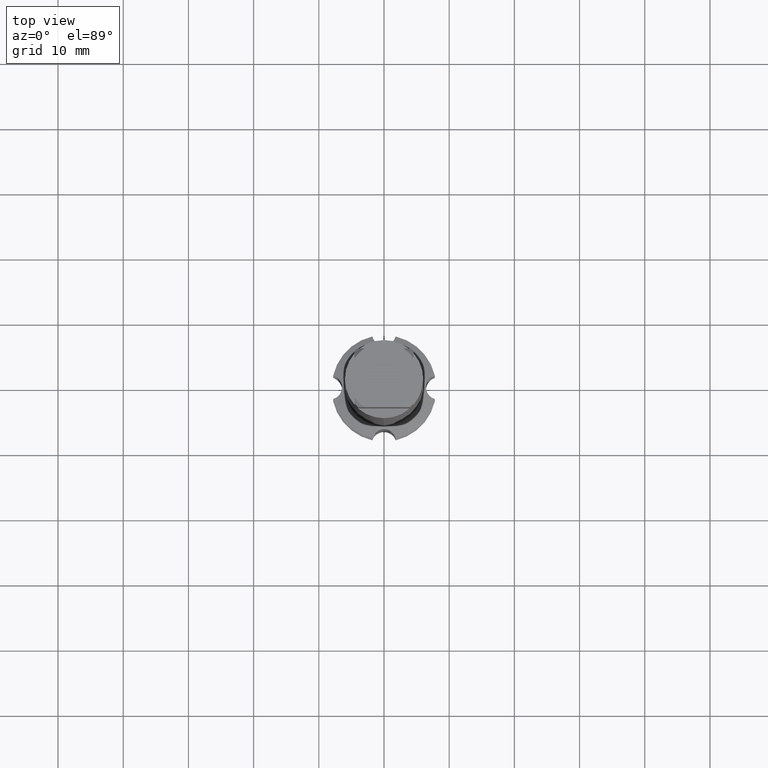
[diagram: clean part render]
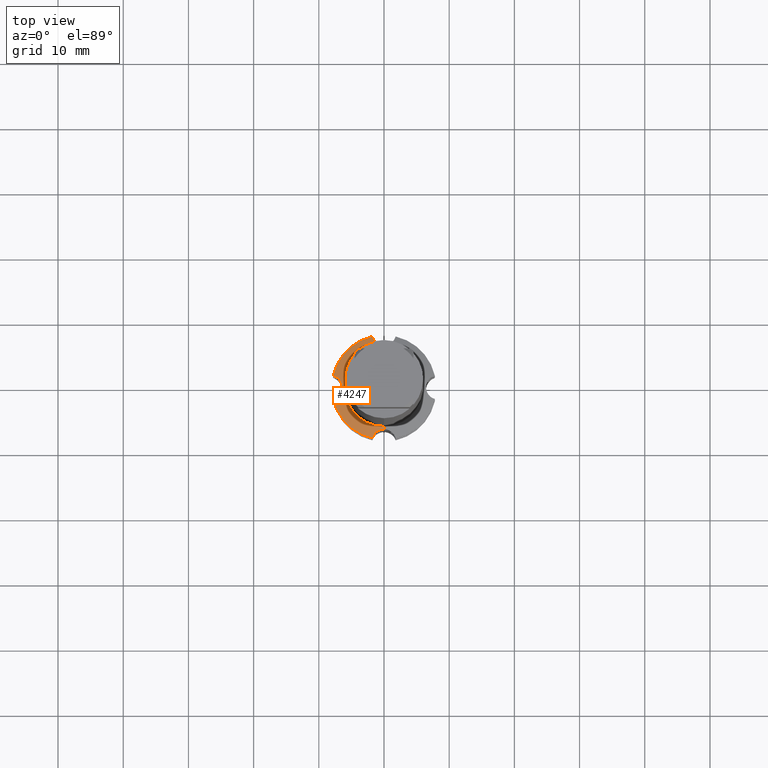
[diagram: same view with one face highlighted and labeled with its STEP entity id]
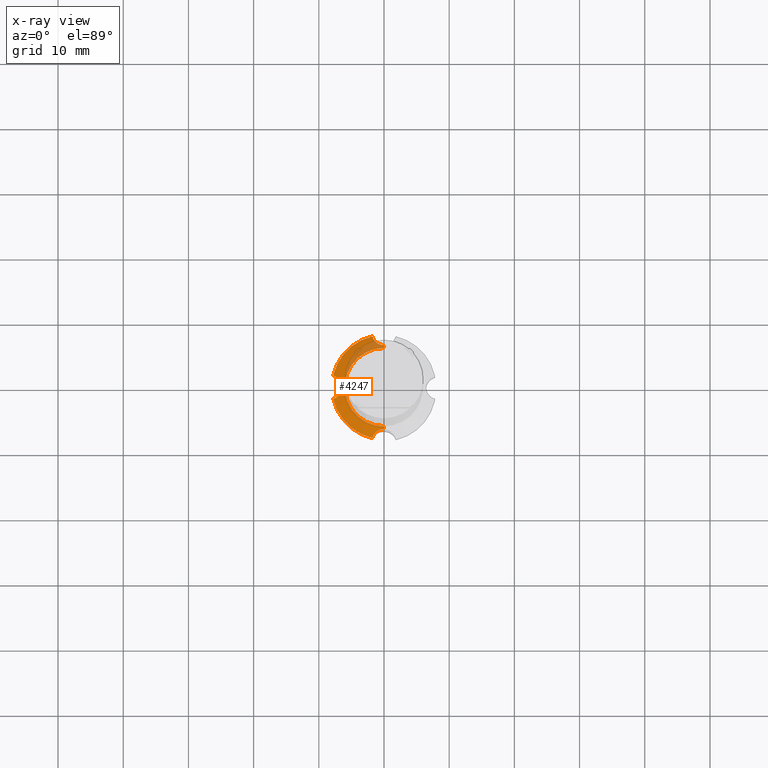
[diagram: x-ray of the same camera — body ghosted, the highlighted face saturated]
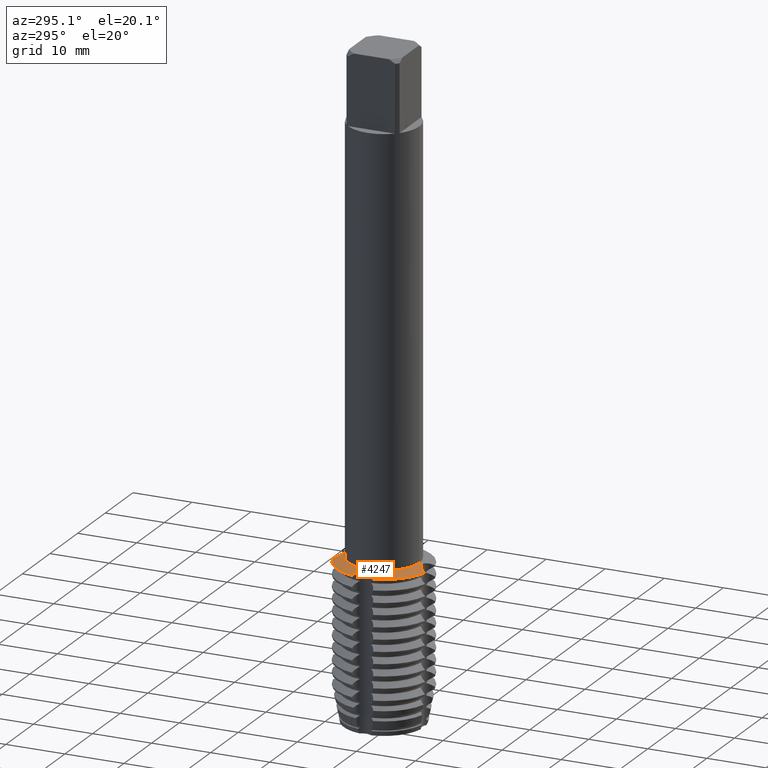
[diagram: same view with one face highlighted and labeled with its STEP entity id]
A machine part, top view. The second image highlights one B-rep face of the part: STEP entity #4247.
The next image is the same camera in x-ray: the body ghosted, the highlighted face saturated — about 19% of this face is hidden behind the body in this view.
A second angle (auxiliary view) of the same face is appended — the face is thin or edge-on in the first view.
In plain terms, the highlighted conical surface has half-angle 70.158 deg.
Its self-contained STEP definition (entity closure, byte-faithful):
#1937=VERTEX_POINT('',#5188);
#2115=VERTEX_POINT('',#5384);
#2465=EDGE_CURVE('',#2115,#1937,#5761,.T.);
#2785=VERTEX_POINT('',#6117);
#2793=VERTEX_POINT('',#6126);
#2803=VERTEX_POINT('',#6136);
#3225=VERTEX_POINT('',#6591);
#3319=EDGE_CURVE('',#1937,#4679,#6691,.T.);
#3347=EDGE_CURVE('',#3225,#2785,#6722,.T.);
#3573=EDGE_CURVE('',#2115,#4507,#6965,.T.);
#3957=EDGE_CURVE('',#4679,#2803,#7377,.T.);
#4247=ADVANCED_FACE('',(#7689),#7690,.T.);
#4305=EDGE_CURVE('',#2803,#3225,#7757,.T.);
#4329=EDGE_CURVE('',#4493,#4507,#7786,.T.);
#4449=EDGE_CURVE('',#2793,#2785,#7918,.T.);
#4493=VERTEX_POINT('',#7966);
#4507=VERTEX_POINT('',#7980);
#4647=EDGE_CURVE('',#2793,#4493,#8130,.T.);
#4679=VERTEX_POINT('',#8166);
#5188=CARTESIAN_POINT('',(-1.29385885950753E-010,-6.44546894861391,-83.4390569243866));
#5384=CARTESIAN_POINT('',(-1.77972067254717,-7.79952526297007,-84.0));
#5761=B_SPLINE_CURVE_WITH_KNOTS('',3,(#10138,#10139,#10140,#10141,#10142,#10143,#10144,#10145,#10146,#10147,#10148,#10149,#10150,#10151,#10152,#10153,#10154,#10155),.UNSPECIFIED.,.F.,.F.,(4,2,2,2,2,2,2,2,4),(0.0,0.743907113125749,1.46095810134953,2.09713409270988,2.58940129921727,3.1145565978782,3.83983705860934,4.47842155471449,5.00062197485792),.UNSPECIFIED.);
#6117=CARTESIAN_POINT('',(-1.77972067254717,7.79952526297007,-84.0));
#6126=CARTESIAN_POINT('',(-7.79952526297007,1.77972067254717,-84.0));
#6136=CARTESIAN_POINT('',(0.0,6.0,-83.278312163513));
#6591=CARTESIAN_POINT('',(1.29385825797603E-010,6.44546894861392,-83.4390569243866));
#6691=LINE('',#11926,#11927);
#6722=B_SPLINE_CURVE_WITH_KNOTS('',3,(#11970,#11971,#11972,#11973,#11974,#11975,#11976,#11977,#11978,#11979,#11980,#11981,#11982,#11983,#11984,#11985,#11986,#11987),.UNSPECIFIED.,.F.,.F.,(4,2,2,2,2,2,2,2,4),(0.0,0.743907113125749,1.46095810134953,2.09713409270993,2.5894012992172,3.11455659787783,3.83983705860852,4.47842155471322,5.00062197485644),.UNSPECIFIED.);
#6965=CIRCLE('',#12426,8.0);
#7377=CIRCLE('',#13204,6.0);
#7689=FACE_OUTER_BOUND('',#13814,.T.);
#7690=CONICAL_SURFACE('',#13815,7.0,1.22449385246993);
#7757=LINE('',#13921,#13922);
#7786=B_SPLINE_CURVE_WITH_KNOTS('',3,(#13963,#13964,#13965,#13966,#13967,#13968,#13969,#13970,#13971,#13972,#13973,#13974,#13975,#13976,#13977,#13978,#13979,#13980),.UNSPECIFIED.,.F.,.F.,(4,2,2,2,2,2,2,2,4),(0.0,0.743907113125742,1.46095810134955,2.09713409270999,2.58940129921739,3.11455659787825,3.83983705860924,4.47842155471429,5.00062197485762),.UNSPECIFIED.);
#7918=CIRCLE('',#14213,8.0);
#7966=CARTESIAN_POINT('',(-6.44546894861391,1.29387811202109E-010,-83.4390569243866));
#7980=CARTESIAN_POINT('',(-7.79952526297007,-1.77972067254717,-84.0));
#8130=B_SPLINE_CURVE_WITH_KNOTS('',3,(#14644,#14645,#14646,#14647,#14648,#14649,#14650,#14651,#14652,#14653,#14654,#14655,#14656,#14657,#14658,#14659,#14660,#14661),.UNSPECIFIED.,.F.,.F.,(4,2,2,2,2,2,2,2,4),(0.0,0.743907113125742,1.46095810134955,2.09713409270999,2.58940129921739,3.11455659787825,3.83983705860924,4.47842155471429,5.00062197485762),.UNSPECIFIED.);
#8166=CARTESIAN_POINT('',(7.34763812293426E-016,-6.0,-83.278312163513));
#10138=CARTESIAN_POINT('',(-1.77972067254718,-7.79952526297008,-84.0));
#10139=CARTESIAN_POINT('',(-1.72274788460475,-7.57333519677746,-83.9158525160687));
#10140=CARTESIAN_POINT('',(-1.62246393047004,-7.36037883649537,-83.8327188840648));
#10141=CARTESIAN_POINT('',(-1.34561552245523,-6.99022538646826,-83.6817034979369));
#10142=CARTESIAN_POINT('',(-1.17452622721384,-6.83488275768263,-83.6148861639171));
#10143=CARTESIAN_POINT('',(-0.799180942026883,-6.60800776130369,-83.5143954223688));
#10144=CARTESIAN_POINT('',(-0.603991438880815,-6.53091235472515,-83.4788132489953));
#10145=CARTESIAN_POINT('',(-0.238770410104924,-6.45336365993817,-83.4428107146941));
#10146=CARTESIAN_POINT('',(-0.0752486855563721,-6.43999079202227,-83.4364916322954));
#10147=CARTESIAN_POINT('',(0.262504376087265,-6.45549230824989,-83.4437512278865));
#10148=CARTESIAN_POINT('',(0.434249049539494,-6.48713438325891,-83.4586334954057));
#10149=CARTESIAN_POINT('',(0.824930968066907,-6.61612351856245,-83.5178261958042));
#10150=CARTESIAN_POINT('',(1.0320949573823,-6.73231569564684,-83.5703604888762));
#10151=CARTESIAN_POINT('',(1.36545334702968,-7.01513130317354,-83.6916903805701));
#10152=CARTESIAN_POINT('',(1.4957258562194,-7.17180116171569,-83.7567395740589));
#10153=CARTESIAN_POINT('',(1.67838946384341,-7.48834961657398,-83.8823552169842));
#10154=CARTESIAN_POINT('',(1.73975538770794,-7.64085740152842,-83.9409722029538));
#10155=CARTESIAN_POINT('',(1.77972067254717,-7.79952526297008,-84.0));
#11926=CARTESIAN_POINT('',(8.57224447675664E-016,-7.0,-83.6391560817565));
#11927=VECTOR('',#17111,1.0);
#11970=CARTESIAN_POINT('',(1.77972067254717,7.79952526297006,-84.0));
#11971=CARTESIAN_POINT('',(1.72274788460474,7.57333519677745,-83.9158525160687));
#11972=CARTESIAN_POINT('',(1.62246393047002,7.36037883649535,-83.8327188840648));
#11973=CARTESIAN_POINT('',(1.34561552245521,6.99022538646825,-83.6817034979369));
#11974=CARTESIAN_POINT('',(1.17452622721381,6.83488275768263,-83.6148861639171));
#11975=CARTESIAN_POINT('',(0.799180942026838,6.60800776130368,-83.5143954223688));
#11976=CARTESIAN_POINT('',(0.603991438880808,6.53091235472516,-83.4788132489954));
#11977=CARTESIAN_POINT('',(0.238770410105053,6.4533636599382,-83.4428107146942));
#11978=CARTESIAN_POINT('',(0.0752486855564631,6.43999079202228,-83.4364916322954));
#11979=CARTESIAN_POINT('',(-0.262504376087204,6.4554923082499,-83.4437512278865));
#11980=CARTESIAN_POINT('',(-0.434249049539422,6.4871343832589,-83.4586334954057));
#11981=CARTESIAN_POINT('',(-0.824930968066851,6.61612351856243,-83.5178261958042));
#11982=CARTESIAN_POINT('',(-1.03209495738225,6.73231569564682,-83.5703604888761));
#11983=CARTESIAN_POINT('',(-1.36545334702966,7.01513130317352,-83.6916903805701));
#11984=CARTESIAN_POINT('',(-1.49572585621937,7.17180116171566,-83.7567395740589));
#11985=CARTESIAN_POINT('',(-1.67838946384338,7.48834961657393,-83.8823552169842));
#11986=CARTESIAN_POINT('',(-1.73975538770792,7.64085740152839,-83.9409722029538));
#11987=CARTESIAN_POINT('',(-1.77972067254716,7.79952526297006,-84.0));
#12426=AXIS2_PLACEMENT_3D('',#17372,#17373,#17374);
#13204=AXIS2_PLACEMENT_3D('',#17771,#17772,#17773);
#13814=EDGE_LOOP('',(#18060,#18061,#18062,#18063,#18064,#18065,#18066,#18067,#18068));
#13815=AXIS2_PLACEMENT_3D('',#18069,#18070,#18071);
#13921=CARTESIAN_POINT('',(-8.57224447675664E-016,7.0,-83.6391560817565));
#13922=VECTOR('',#18273,1.0);
#13963=CARTESIAN_POINT('',(-7.79952526297008,1.77972067254717,-84.0));
#13964=CARTESIAN_POINT('',(-7.57333519677747,1.72274788460475,-83.9158525160687));
#13965=CARTESIAN_POINT('',(-7.36037883649537,1.62246393047003,-83.8327188840648));
#13966=CARTESIAN_POINT('',(-6.99022538646825,1.34561552245522,-83.6817034979369));
#13967=CARTESIAN_POINT('',(-6.83488275768263,1.17452622721382,-83.6148861639171));
#13968=CARTESIAN_POINT('',(-6.60800776130368,0.799180942026865,-83.5143954223688));
#13969=CARTESIAN_POINT('',(-6.53091235472515,0.603991438880799,-83.4788132489954));
#13970=CARTESIAN_POINT('',(-6.45336365993818,0.238770410104934,-83.4428107146941));
#13971=CARTESIAN_POINT('',(-6.43999079202227,0.0752486855563732,-83.4364916322954));
#13972=CARTESIAN_POINT('',(-6.4554923082499,-0.262504376087262,-83.4437512278865));
#13973=CARTESIAN_POINT('',(-6.48713438325891,-0.434249049539481,-83.4586334954057));
#13974=CARTESIAN_POINT('',(-6.61612351856246,-0.824930968066923,-83.5178261958042));
#13975=CARTESIAN_POINT('',(-6.73231569564686,-1.03209495738231,-83.5703604888762));
#13976=CARTESIAN_POINT('',(-7.01513130317355,-1.36545334702969,-83.6916903805702));
#13977=CARTESIAN_POINT('',(-7.1718011617157,-1.49572585621941,-83.7567395740589));
#13978=CARTESIAN_POINT('',(-7.48834961657399,-1.67838946384341,-83.8823552169842));
#13979=CARTESIAN_POINT('',(-7.64085740152842,-1.73975538770794,-83.9409722029538));
#13980=CARTESIAN_POINT('',(-7.79952526297008,-1.77972067254717,-84.0));
#14213=AXIS2_PLACEMENT_3D('',#18466,#18467,#18468);
#14644=CARTESIAN_POINT('',(-7.79952526297008,1.77972067254717,-84.0));
#14645=CARTESIAN_POINT('',(-7.57333519677747,1.72274788460475,-83.9158525160687));
#14646=CARTESIAN_POINT('',(-7.36037883649537,1.62246393047003,-83.8327188840648));
#14647=CARTESIAN_POINT('',(-6.99022538646825,1.34561552245522,-83.6817034979369));
#14648=CARTESIAN_POINT('',(-6.83488275768263,1.17452622721382,-83.6148861639171));
#14649=CARTESIAN_POINT('',(-6.60800776130368,0.799180942026865,-83.5143954223688));
#14650=CARTESIAN_POINT('',(-6.53091235472515,0.603991438880799,-83.4788132489954));
#14651=CARTESIAN_POINT('',(-6.45336365993818,0.238770410104934,-83.4428107146941));
#14652=CARTESIAN_POINT('',(-6.43999079202227,0.0752486855563732,-83.4364916322954));
#14653=CARTESIAN_POINT('',(-6.4554923082499,-0.262504376087262,-83.4437512278865));
#14654=CARTESIAN_POINT('',(-6.48713438325891,-0.434249049539481,-83.4586334954057));
#14655=CARTESIAN_POINT('',(-6.61612351856246,-0.824930968066923,-83.5178261958042));
#14656=CARTESIAN_POINT('',(-6.73231569564686,-1.03209495738231,-83.5703604888762));
#14657=CARTESIAN_POINT('',(-7.01513130317355,-1.36545334702969,-83.6916903805702));
#14658=CARTESIAN_POINT('',(-7.1718011617157,-1.49572585621941,-83.7567395740589));
#14659=CARTESIAN_POINT('',(-7.48834961657399,-1.67838946384341,-83.8823552169842));
#14660=CARTESIAN_POINT('',(-7.64085740152842,-1.73975538770794,-83.9409722029538));
#14661=CARTESIAN_POINT('',(-7.79952526297008,-1.77972067254717,-84.0));
#17111=DIRECTION('',(-1.15190657141193E-016,0.940634162003545,0.339422116651065));
#17372=CARTESIAN_POINT('',(0.0,0.0,-84.0));
#17373=DIRECTION('',(0.0,0.0,-1.0));
#17374=DIRECTION('',(0.0,1.0,0.0));
#17771=CARTESIAN_POINT('',(0.0,0.0,-83.278312163513));
#17772=DIRECTION('',(0.0,0.0,-1.0));
#17773=DIRECTION('',(0.0,1.0,0.0));
#18060=ORIENTED_EDGE('',*,*,#4305,.T.);
#18061=ORIENTED_EDGE('',*,*,#3347,.T.);
#18062=ORIENTED_EDGE('',*,*,#4449,.F.);
#18063=ORIENTED_EDGE('',*,*,#4647,.T.);
#18064=ORIENTED_EDGE('',*,*,#4329,.T.);
#18065=ORIENTED_EDGE('',*,*,#3573,.F.);
#18066=ORIENTED_EDGE('',*,*,#2465,.T.);
#18067=ORIENTED_EDGE('',*,*,#3319,.T.);
#18068=ORIENTED_EDGE('',*,*,#3957,.T.);
#18069=CARTESIAN_POINT('',(0.0,0.0,-83.6391560817565));
#18070=DIRECTION('',(0.0,-0.0,-1.0));
#18071=DIRECTION('',(0.0,1.0,0.0));
#18273=DIRECTION('',(-1.15190657141193E-016,0.940634162003545,-0.339422116651065));
#18466=CARTESIAN_POINT('',(0.0,0.0,-84.0));
#18467=DIRECTION('',(0.0,0.0,-1.0));
#18468=DIRECTION('',(0.0,1.0,0.0));